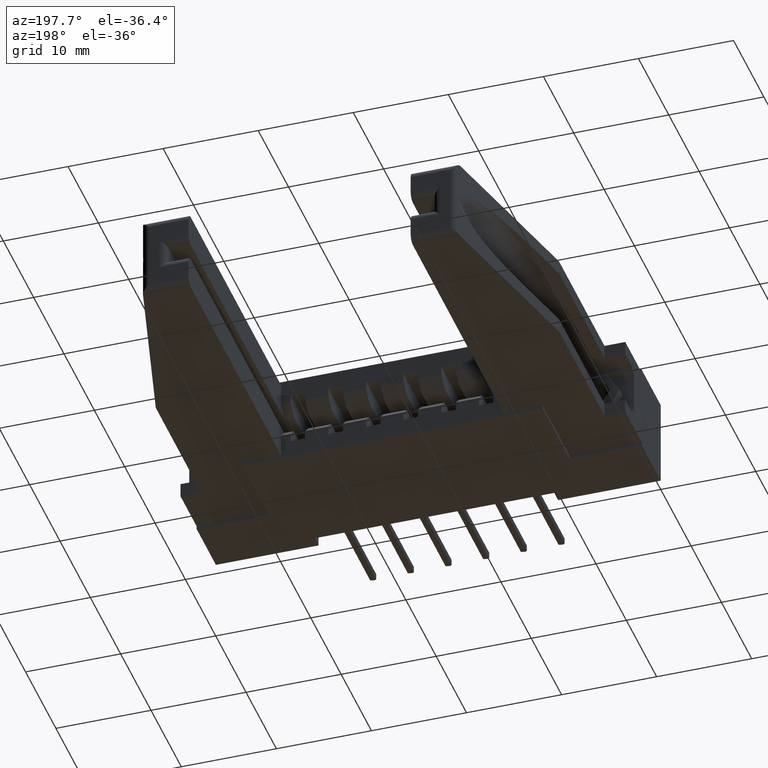
[diagram: clean part render]
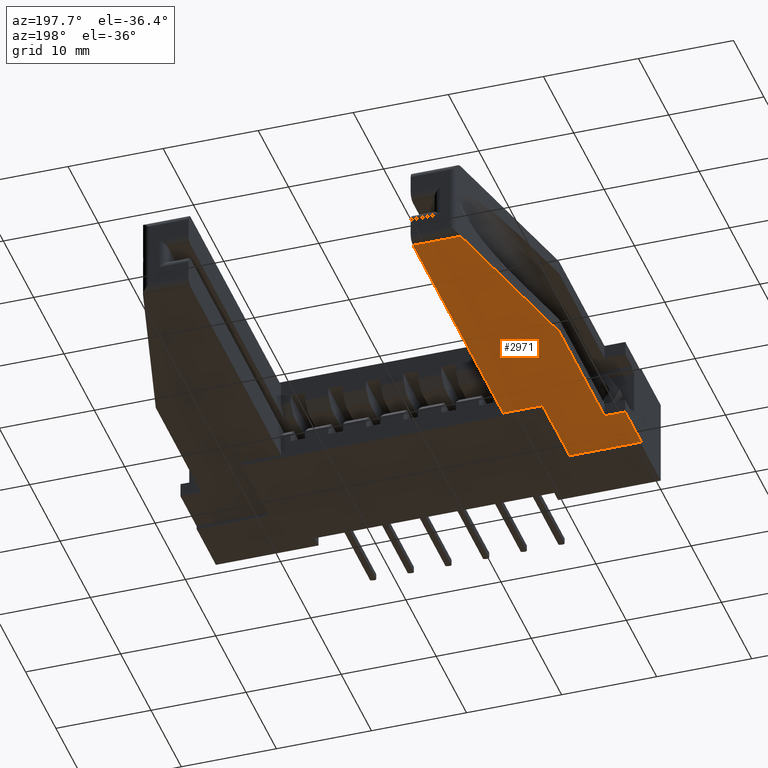
[diagram: same view with one face highlighted and labeled with its STEP entity id]
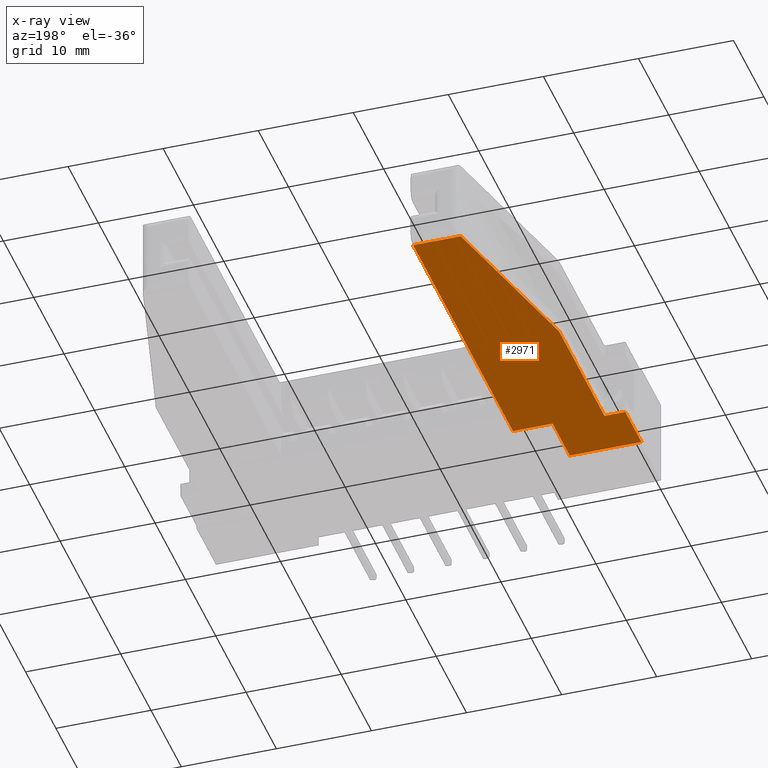
[diagram: x-ray of the same camera — body ghosted, the highlighted face saturated]
A machine part, auxiliary view. The second image highlights one B-rep face of the part: STEP entity #2971.
The next image is the same camera in x-ray: the body ghosted, the highlighted face saturated — about 0% of this face is hidden behind the body in this view.
In plain terms, the highlighted planar face has unit normal (0, 0, 1).
Its self-contained STEP definition (entity closure, byte-faithful):
#41 = EDGE_CURVE ( 'NONE', #1779, #1686, #9730, .T. ) ;
#55 = CARTESIAN_POINT ( 'NONE',  ( 5.427945026982818800E-017, 0.2099999999999999400, -0.3430000000000000300 ) ) ;
#82 = ORIENTED_EDGE ( 'NONE', *, *, #8560, .F. ) ;
#84 = VERTEX_POINT ( 'NONE', #967 ) ;
#94 = VERTEX_POINT ( 'NONE', #1092 ) ;
#128 = LINE ( 'NONE', #5601, #258 ) ;
#233 = ORIENTED_EDGE ( 'NONE', *, *, #11311, .F. ) ;
#258 = VECTOR ( 'NONE', #1906, 39.37007874015748100 ) ;
#267 = ORIENTED_EDGE ( 'NONE', *, *, #4182, .F. ) ;
#309 = VECTOR ( 'NONE', #7029, 39.37007874015748100 ) ;
#636 = VERTEX_POINT ( 'NONE', #3630 ) ;
#673 = DIRECTION ( 'NONE',  ( -1.000000000000000000, -0.0000000000000000000, -0.0000000000000000000 ) ) ;
#967 = CARTESIAN_POINT ( 'NONE',  ( 0.2636000000000000600, 1.520000000000000200, -0.3430000000000000300 ) ) ;
#982 = CARTESIAN_POINT ( 'NONE',  ( 0.2710000000000000200, 1.550000000000000000, -0.3430000000000000300 ) ) ;
#989 = VECTOR ( 'NONE', #1783, 39.37007874015748900 ) ;
#1092 = CARTESIAN_POINT ( 'NONE',  ( 0.08600000000000011800, 0.2099999999999999400, -0.3430000000000000300 ) ) ;
#1256 = LINE ( 'NONE', #3888, #2519 ) ;
#1489 = VERTEX_POINT ( 'NONE', #3949 ) ;
#1546 = CARTESIAN_POINT ( 'NONE',  ( 0.08600000000000013200, 0.8000000000000000400, -0.3430000000000000300 ) ) ;
#1686 = VERTEX_POINT ( 'NONE', #8162 ) ;
#1779 = VERTEX_POINT ( 'NONE', #10806 ) ;
#1783 = DIRECTION ( 'NONE',  ( -0.2394884713086026000, -0.9708992080078490100, 0.0000000000000000000 ) ) ;
#1906 = DIRECTION ( 'NONE',  ( 0.0000000000000000000, 1.000000000000000000, 0.0000000000000000000 ) ) ;
#2365 = VERTEX_POINT ( 'NONE', #55 ) ;
#2380 = LINE ( 'NONE', #7274, #7152 ) ;
#2459 = EDGE_CURVE ( 'NONE', #84, #1489, #1256, .T. ) ;
#2519 = VECTOR ( 'NONE', #3933, 39.37007874015748100 ) ;
#2714 = LINE ( 'NONE', #5186, #8065 ) ;
#2971 = ADVANCED_FACE ( 'NONE', ( #5839 ), #6947, .F. ) ;
#3630 = CARTESIAN_POINT ( 'NONE',  ( 0.08600000000000013200, 0.8000000000000000400, -0.3430000000000000300 ) ) ;
#3888 = CARTESIAN_POINT ( 'NONE',  ( 0.4610000000000000800, 1.520000000000000200, -0.3430000000000000300 ) ) ;
#3933 = DIRECTION ( 'NONE',  ( 1.000000000000000000, -0.0000000000000000000, -0.0000000000000000000 ) ) ;
#3949 = CARTESIAN_POINT ( 'NONE',  ( 0.4610000000000000800, 1.519999999999999600, -0.3430000000000000300 ) ) ;
#4017 = ORIENTED_EDGE ( 'NONE', *, *, #10201, .F. ) ;
#4141 = VERTEX_POINT ( 'NONE', #5956 ) ;
#4182 = EDGE_CURVE ( 'NONE', #2365, #1779, #2380, .T. ) ;
#4241 = EDGE_LOOP ( 'NONE', ( #82, #5355, #233, #11340, #8168, #4544, #267, #4017, #6169 ) ) ;
#4372 = DIRECTION ( 'NONE',  ( 1.000000000000000000, 0.0000000000000000000, 0.0000000000000000000 ) ) ;
#4544 = ORIENTED_EDGE ( 'NONE', *, *, #41, .F. ) ;
#4659 = LINE ( 'NONE', #1546, #10259 ) ;
#4687 = LINE ( 'NONE', #5655, #6933 ) ;
#4916 = EDGE_CURVE ( 'NONE', #1686, #6269, #128, .T. ) ;
#5186 = CARTESIAN_POINT ( 'NONE',  ( 5.427945026982818800E-017, 0.2099999999999999400, -0.3430000000000000300 ) ) ;
#5355 = ORIENTED_EDGE ( 'NONE', *, *, #2459, .T. ) ;
#5383 = DIRECTION ( 'NONE',  ( 1.000000000000000000, 0.0000000000000000000, 0.0000000000000000000 ) ) ;
#5601 = CARTESIAN_POINT ( 'NONE',  ( 0.2969999999999999900, 0.0000000000000000000, -0.3430000000000000300 ) ) ;
#5655 = CARTESIAN_POINT ( 'NONE',  ( 0.2969999999999999900, 0.2230000000000000300, -0.3430000000000000300 ) ) ;
#5839 = FACE_OUTER_BOUND ( 'NONE', #4241, .T. ) ;
#5956 = CARTESIAN_POINT ( 'NONE',  ( 0.4610000000000000200, 0.2230000000000000300, -0.3430000000000000300 ) ) ;
#6169 = ORIENTED_EDGE ( 'NONE', *, *, #7500, .F. ) ;
#6269 = VERTEX_POINT ( 'NONE', #7884 ) ;
#6485 = AXIS2_PLACEMENT_3D ( 'NONE', #9747, #7953, #4372 ) ;
#6933 = VECTOR ( 'NONE', #8236, 39.37007874015748100 ) ;
#6947 = PLANE ( 'NONE',  #6485 ) ;
#7006 = DIRECTION ( 'NONE',  ( -2.893906772949430800E-017, -1.000000000000000000, 0.0000000000000000000 ) ) ;
#7029 = DIRECTION ( 'NONE',  ( 5.146661630867112300E-017, 1.000000000000000000, 0.0000000000000000000 ) ) ;
#7152 = VECTOR ( 'NONE', #9977, 39.37007874015748100 ) ;
#7274 = CARTESIAN_POINT ( 'NONE',  ( 5.427945026982818800E-017, 0.2099999999999999400, -0.3430000000000000300 ) ) ;
#7490 = VECTOR ( 'NONE', #5383, 39.37007874015748100 ) ;
#7500 = EDGE_CURVE ( 'NONE', #636, #94, #4659, .T. ) ;
#7884 = CARTESIAN_POINT ( 'NONE',  ( 0.2969999999999999900, 0.2230000000000000300, -0.3430000000000000300 ) ) ;
#7953 = DIRECTION ( 'NONE',  ( -0.0000000000000000000, 0.0000000000000000000, 1.000000000000000000 ) ) ;
#8065 = VECTOR ( 'NONE', #673, 39.37007874015748100 ) ;
#8162 = CARTESIAN_POINT ( 'NONE',  ( 0.2969999999999999900, 0.0000000000000000000, -0.3430000000000000300 ) ) ;
#8168 = ORIENTED_EDGE ( 'NONE', *, *, #4916, .F. ) ;
#8236 = DIRECTION ( 'NONE',  ( 1.000000000000000000, 0.0000000000000000000, 0.0000000000000000000 ) ) ;
#8445 = LINE ( 'NONE', #982, #989 ) ;
#8560 = EDGE_CURVE ( 'NONE', #84, #636, #8445, .T. ) ;
#9503 = EDGE_CURVE ( 'NONE', #6269, #4141, #4687, .T. ) ;
#9713 = LINE ( 'NONE', #11559, #309 ) ;
#9730 = LINE ( 'NONE', #11577, #7490 ) ;
#9747 = CARTESIAN_POINT ( 'NONE',  ( -7.582401355855259500E-033, 0.0000000000000000000, -0.3430000000000000300 ) ) ;
#9977 = DIRECTION ( 'NONE',  ( -2.584735727134676700E-016, -1.000000000000000000, 0.0000000000000000000 ) ) ;
#10201 = EDGE_CURVE ( 'NONE', #94, #2365, #2714, .T. ) ;
#10259 = VECTOR ( 'NONE', #7006, 39.37007874015748100 ) ;
#10806 = CARTESIAN_POINT ( 'NONE',  ( 0.0000000000000000000, 0.0000000000000000000, -0.3430000000000000300 ) ) ;
#11311 = EDGE_CURVE ( 'NONE', #4141, #1489, #9713, .T. ) ;
#11340 = ORIENTED_EDGE ( 'NONE', *, *, #9503, .F. ) ;
#11559 = CARTESIAN_POINT ( 'NONE',  ( 0.4610000000000000200, 0.2230000000000000300, -0.3430000000000000300 ) ) ;
#11577 = CARTESIAN_POINT ( 'NONE',  ( 0.0000000000000000000, 0.0000000000000000000, -0.3430000000000000300 ) ) ;